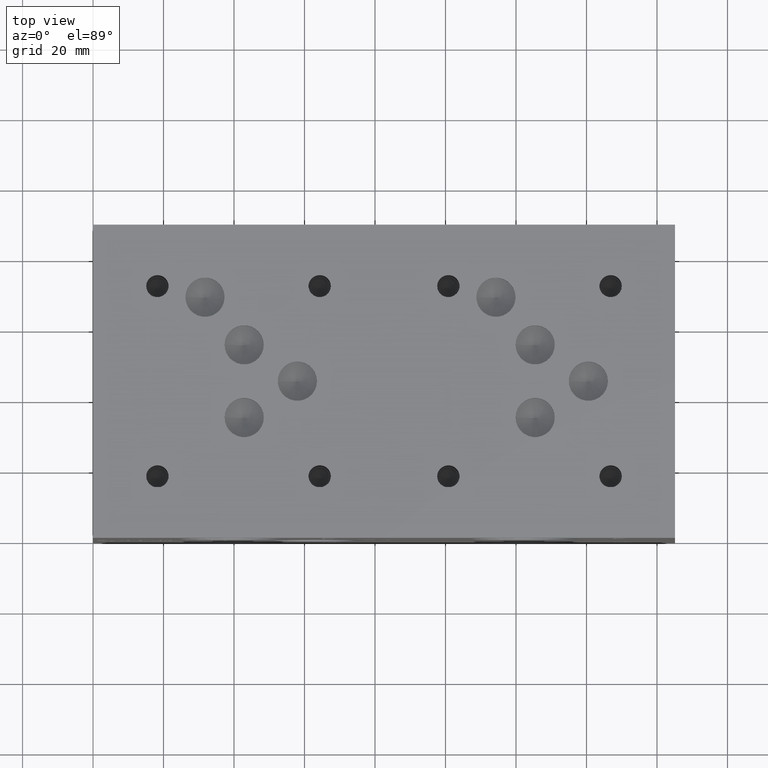
[diagram: clean part render]
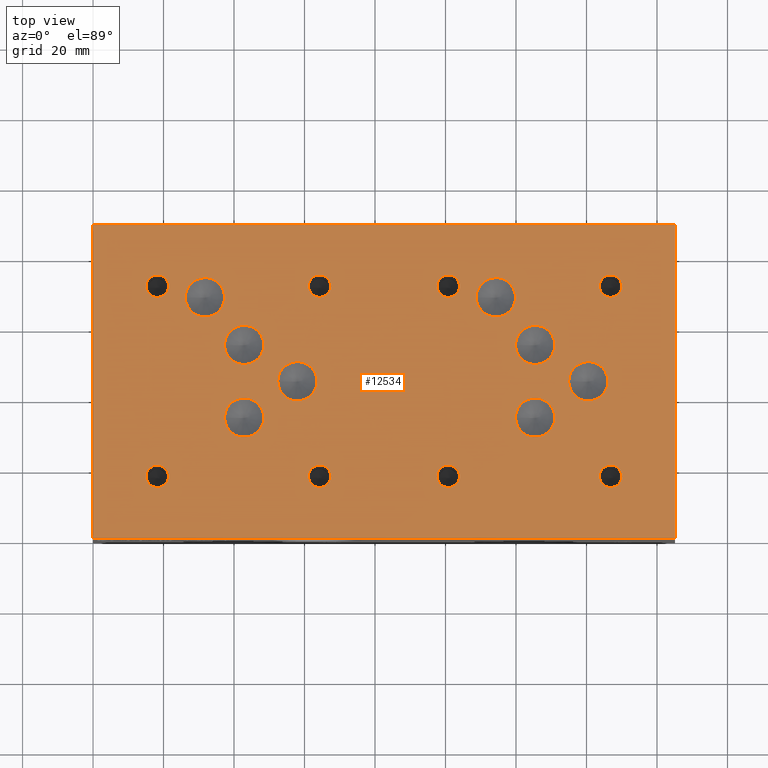
[diagram: same view with one face highlighted and labeled with its STEP entity id]
A machine part, top view. The second image highlights one B-rep face of the part: STEP entity #12534.
In plain terms, the highlighted planar face has unit normal (0, 0, 1).
Its self-contained STEP definition (entity closure, byte-faithful):
#370=CIRCLE('',#12915,3.175);
#371=CIRCLE('',#12916,3.175);
#377=CIRCLE('',#12926,3.175);
#378=CIRCLE('',#12927,3.175);
#384=CIRCLE('',#12937,3.175);
#385=CIRCLE('',#12938,3.175);
#391=CIRCLE('',#12948,3.175);
#392=CIRCLE('',#12949,3.175);
#395=CIRCLE('',#12955,5.5626);
#396=CIRCLE('',#12956,5.5626);
#399=CIRCLE('',#12961,5.5626);
#400=CIRCLE('',#12962,5.5626);
#403=CIRCLE('',#12967,5.5626);
#404=CIRCLE('',#12968,5.5626);
#407=CIRCLE('',#12973,5.5626);
#408=CIRCLE('',#12974,5.5626);
#411=CIRCLE('',#12979,5.5626);
#412=CIRCLE('',#12980,5.5626);
#415=CIRCLE('',#12985,5.5626);
#416=CIRCLE('',#12986,5.5626);
#419=CIRCLE('',#12991,5.5626);
#420=CIRCLE('',#12992,5.5626);
#423=CIRCLE('',#12997,5.5626);
#424=CIRCLE('',#12998,5.5626);
#430=CIRCLE('',#13007,3.175);
#431=CIRCLE('',#13008,3.175);
#437=CIRCLE('',#13018,3.175);
#438=CIRCLE('',#13019,3.175);
#444=CIRCLE('',#13029,3.175);
#445=CIRCLE('',#13030,3.175);
#451=CIRCLE('',#13040,3.175);
#452=CIRCLE('',#13041,3.175);
#1044=FACE_BOUND('',#2430,.T.);
#1045=FACE_BOUND('',#2431,.T.);
#1046=FACE_BOUND('',#2432,.T.);
#1047=FACE_BOUND('',#2433,.T.);
#1048=FACE_BOUND('',#2434,.T.);
#1049=FACE_BOUND('',#2435,.T.);
#1050=FACE_BOUND('',#2436,.T.);
#1051=FACE_BOUND('',#2437,.T.);
#1052=FACE_BOUND('',#2438,.T.);
#1053=FACE_BOUND('',#2439,.T.);
#1054=FACE_BOUND('',#2440,.T.);
#1055=FACE_BOUND('',#2441,.T.);
#1056=FACE_BOUND('',#2442,.T.);
#1057=FACE_BOUND('',#2443,.T.);
#1058=FACE_BOUND('',#2444,.T.);
#1059=FACE_BOUND('',#2445,.T.);
#1703=FACE_OUTER_BOUND('',#2429,.T.);
#2429=EDGE_LOOP('',(#11045,#11046,#11047,#11048));
#2430=EDGE_LOOP('',(#11049,#11050));
#2431=EDGE_LOOP('',(#11051,#11052));
#2432=EDGE_LOOP('',(#11053,#11054));
#2433=EDGE_LOOP('',(#11055,#11056));
#2434=EDGE_LOOP('',(#11057,#11058));
#2435=EDGE_LOOP('',(#11059,#11060));
#2436=EDGE_LOOP('',(#11061,#11062));
#2437=EDGE_LOOP('',(#11063,#11064));
#2438=EDGE_LOOP('',(#11065,#11066));
#2439=EDGE_LOOP('',(#11067,#11068));
#2440=EDGE_LOOP('',(#11069,#11070));
#2441=EDGE_LOOP('',(#11071,#11072));
#2442=EDGE_LOOP('',(#11073,#11074));
#2443=EDGE_LOOP('',(#11075,#11076));
#2444=EDGE_LOOP('',(#11077,#11078));
#2445=EDGE_LOOP('',(#11079,#11080));
#2482=LINE('',#15957,#3586);
#3413=LINE('',#20955,#4517);
#3531=LINE('',#21719,#4635);
#3550=LINE('',#21819,#4654);
#3586=VECTOR('',#13355,10.);
#4517=VECTOR('',#14884,10.);
#4635=VECTOR('',#15758,10.);
#4654=VECTOR('',#15875,10.);
#4679=VERTEX_POINT('',#15954);
#4680=VERTEX_POINT('',#15956);
#5552=VERTEX_POINT('',#20954);
#5592=VERTEX_POINT('',#21061);
#5593=VERTEX_POINT('',#21062);
#5600=VERTEX_POINT('',#21083);
#5601=VERTEX_POINT('',#21084);
#5608=VERTEX_POINT('',#21105);
#5609=VERTEX_POINT('',#21106);
#5616=VERTEX_POINT('',#21127);
#5617=VERTEX_POINT('',#21128);
#5621=VERTEX_POINT('',#21142);
#5622=VERTEX_POINT('',#21143);
#5626=VERTEX_POINT('',#21155);
#5627=VERTEX_POINT('',#21156);
#5631=VERTEX_POINT('',#21168);
#5632=VERTEX_POINT('',#21169);
#5636=VERTEX_POINT('',#21181);
#5637=VERTEX_POINT('',#21182);
#5641=VERTEX_POINT('',#21194);
#5642=VERTEX_POINT('',#21195);
#5646=VERTEX_POINT('',#21207);
#5647=VERTEX_POINT('',#21208);
#5651=VERTEX_POINT('',#21220);
#5652=VERTEX_POINT('',#21221);
#5656=VERTEX_POINT('',#21233);
#5657=VERTEX_POINT('',#21234);
#5664=VERTEX_POINT('',#21253);
#5665=VERTEX_POINT('',#21254);
#5672=VERTEX_POINT('',#21275);
#5673=VERTEX_POINT('',#21276);
#5680=VERTEX_POINT('',#21297);
#5681=VERTEX_POINT('',#21298);
#5688=VERTEX_POINT('',#21319);
#5689=VERTEX_POINT('',#21320);
#5820=VERTEX_POINT('',#21717);
#5888=EDGE_CURVE('',#4680,#4679,#2482,.T.);
#7191=EDGE_CURVE('',#5552,#4680,#3413,.T.);
#7242=EDGE_CURVE('',#5592,#5593,#370,.T.);
#7243=EDGE_CURVE('',#5593,#5592,#371,.T.);
#7252=EDGE_CURVE('',#5600,#5601,#377,.T.);
#7253=EDGE_CURVE('',#5601,#5600,#378,.T.);
#7262=EDGE_CURVE('',#5608,#5609,#384,.T.);
#7263=EDGE_CURVE('',#5609,#5608,#385,.T.);
#7272=EDGE_CURVE('',#5616,#5617,#391,.T.);
#7273=EDGE_CURVE('',#5617,#5616,#392,.T.);
#7279=EDGE_CURVE('',#5621,#5622,#395,.T.);
#7280=EDGE_CURVE('',#5622,#5621,#396,.T.);
#7285=EDGE_CURVE('',#5626,#5627,#399,.T.);
#7286=EDGE_CURVE('',#5627,#5626,#400,.T.);
#7291=EDGE_CURVE('',#5631,#5632,#403,.T.);
#7292=EDGE_CURVE('',#5632,#5631,#404,.T.);
#7297=EDGE_CURVE('',#5636,#5637,#407,.T.);
#7298=EDGE_CURVE('',#5637,#5636,#408,.T.);
#7303=EDGE_CURVE('',#5641,#5642,#411,.T.);
#7304=EDGE_CURVE('',#5642,#5641,#412,.T.);
#7309=EDGE_CURVE('',#5646,#5647,#415,.T.);
#7310=EDGE_CURVE('',#5647,#5646,#416,.T.);
#7315=EDGE_CURVE('',#5651,#5652,#419,.T.);
#7316=EDGE_CURVE('',#5652,#5651,#420,.T.);
#7321=EDGE_CURVE('',#5656,#5657,#423,.T.);
#7322=EDGE_CURVE('',#5657,#5656,#424,.T.);
#7330=EDGE_CURVE('',#5664,#5665,#430,.T.);
#7331=EDGE_CURVE('',#5665,#5664,#431,.T.);
#7340=EDGE_CURVE('',#5672,#5673,#437,.T.);
#7341=EDGE_CURVE('',#5673,#5672,#438,.T.);
#7350=EDGE_CURVE('',#5680,#5681,#444,.T.);
#7351=EDGE_CURVE('',#5681,#5680,#445,.T.);
#7360=EDGE_CURVE('',#5688,#5689,#451,.T.);
#7361=EDGE_CURVE('',#5689,#5688,#452,.T.);
#7549=EDGE_CURVE('',#4679,#5820,#3531,.T.);
#7596=EDGE_CURVE('',#5820,#5552,#3550,.T.);
#11045=ORIENTED_EDGE('',*,*,#5888,.T.);
#11046=ORIENTED_EDGE('',*,*,#7549,.T.);
#11047=ORIENTED_EDGE('',*,*,#7596,.T.);
#11048=ORIENTED_EDGE('',*,*,#7191,.T.);
#11049=ORIENTED_EDGE('',*,*,#7242,.T.);
#11050=ORIENTED_EDGE('',*,*,#7243,.T.);
#11051=ORIENTED_EDGE('',*,*,#7252,.T.);
#11052=ORIENTED_EDGE('',*,*,#7253,.T.);
#11053=ORIENTED_EDGE('',*,*,#7262,.T.);
#11054=ORIENTED_EDGE('',*,*,#7263,.T.);
#11055=ORIENTED_EDGE('',*,*,#7272,.T.);
#11056=ORIENTED_EDGE('',*,*,#7273,.T.);
#11057=ORIENTED_EDGE('',*,*,#7279,.T.);
#11058=ORIENTED_EDGE('',*,*,#7280,.T.);
#11059=ORIENTED_EDGE('',*,*,#7285,.T.);
#11060=ORIENTED_EDGE('',*,*,#7286,.T.);
#11061=ORIENTED_EDGE('',*,*,#7291,.T.);
#11062=ORIENTED_EDGE('',*,*,#7292,.T.);
#11063=ORIENTED_EDGE('',*,*,#7297,.T.);
#11064=ORIENTED_EDGE('',*,*,#7298,.T.);
#11065=ORIENTED_EDGE('',*,*,#7303,.T.);
#11066=ORIENTED_EDGE('',*,*,#7304,.T.);
#11067=ORIENTED_EDGE('',*,*,#7309,.T.);
#11068=ORIENTED_EDGE('',*,*,#7310,.T.);
#11069=ORIENTED_EDGE('',*,*,#7315,.T.);
#11070=ORIENTED_EDGE('',*,*,#7316,.T.);
#11071=ORIENTED_EDGE('',*,*,#7321,.T.);
#11072=ORIENTED_EDGE('',*,*,#7322,.T.);
#11073=ORIENTED_EDGE('',*,*,#7330,.T.);
#11074=ORIENTED_EDGE('',*,*,#7331,.T.);
#11075=ORIENTED_EDGE('',*,*,#7340,.T.);
#11076=ORIENTED_EDGE('',*,*,#7341,.T.);
#11077=ORIENTED_EDGE('',*,*,#7350,.T.);
#11078=ORIENTED_EDGE('',*,*,#7351,.T.);
#11079=ORIENTED_EDGE('',*,*,#7360,.T.);
#11080=ORIENTED_EDGE('',*,*,#7361,.T.);
#11419=PLANE('',#13290);
#12534=ADVANCED_FACE('',(#1703,#1044,#1045,#1046,#1047,#1048,#1049,#1050,
#1051,#1052,#1053,#1054,#1055,#1056,#1057,#1058,#1059),#11419,.T.);
#12915=AXIS2_PLACEMENT_3D('',#21063,#15004,#15005);
#12916=AXIS2_PLACEMENT_3D('',#21064,#15006,#15007);
#12926=AXIS2_PLACEMENT_3D('',#21085,#15029,#15030);
#12927=AXIS2_PLACEMENT_3D('',#21086,#15031,#15032);
#12937=AXIS2_PLACEMENT_3D('',#21107,#15054,#15055);
#12938=AXIS2_PLACEMENT_3D('',#21108,#15056,#15057);
#12948=AXIS2_PLACEMENT_3D('',#21129,#15079,#15080);
#12949=AXIS2_PLACEMENT_3D('',#21130,#15081,#15082);
#12955=AXIS2_PLACEMENT_3D('',#21144,#15096,#15097);
#12956=AXIS2_PLACEMENT_3D('',#21145,#15098,#15099);
#12961=AXIS2_PLACEMENT_3D('',#21157,#15110,#15111);
#12962=AXIS2_PLACEMENT_3D('',#21158,#15112,#15113);
#12967=AXIS2_PLACEMENT_3D('',#21170,#15124,#15125);
#12968=AXIS2_PLACEMENT_3D('',#21171,#15126,#15127);
#12973=AXIS2_PLACEMENT_3D('',#21183,#15138,#15139);
#12974=AXIS2_PLACEMENT_3D('',#21184,#15140,#15141);
#12979=AXIS2_PLACEMENT_3D('',#21196,#15152,#15153);
#12980=AXIS2_PLACEMENT_3D('',#21197,#15154,#15155);
#12985=AXIS2_PLACEMENT_3D('',#21209,#15166,#15167);
#12986=AXIS2_PLACEMENT_3D('',#21210,#15168,#15169);
#12991=AXIS2_PLACEMENT_3D('',#21222,#15180,#15181);
#12992=AXIS2_PLACEMENT_3D('',#21223,#15182,#15183);
#12997=AXIS2_PLACEMENT_3D('',#21235,#15194,#15195);
#12998=AXIS2_PLACEMENT_3D('',#21236,#15196,#15197);
#13007=AXIS2_PLACEMENT_3D('',#21255,#15216,#15217);
#13008=AXIS2_PLACEMENT_3D('',#21256,#15218,#15219);
#13018=AXIS2_PLACEMENT_3D('',#21277,#15241,#15242);
#13019=AXIS2_PLACEMENT_3D('',#21278,#15243,#15244);
#13029=AXIS2_PLACEMENT_3D('',#21299,#15266,#15267);
#13030=AXIS2_PLACEMENT_3D('',#21300,#15268,#15269);
#13040=AXIS2_PLACEMENT_3D('',#21321,#15291,#15292);
#13041=AXIS2_PLACEMENT_3D('',#21322,#15293,#15294);
#13290=AXIS2_PLACEMENT_3D('',#21821,#15878,#15879);
#13355=DIRECTION('',(1.,0.,0.));
#14884=DIRECTION('',(0.,-1.,0.));
#15004=DIRECTION('center_axis',(0.,0.,-1.));
#15005=DIRECTION('ref_axis',(1.,0.,0.));
#15006=DIRECTION('center_axis',(0.,0.,-1.));
#15007=DIRECTION('ref_axis',(1.,0.,0.));
#15029=DIRECTION('center_axis',(0.,0.,-1.));
#15030=DIRECTION('ref_axis',(1.,0.,0.));
#15031=DIRECTION('center_axis',(0.,0.,-1.));
#15032=DIRECTION('ref_axis',(1.,0.,0.));
#15054=DIRECTION('center_axis',(0.,0.,-1.));
#15055=DIRECTION('ref_axis',(1.,0.,0.));
#15056=DIRECTION('center_axis',(0.,0.,-1.));
#15057=DIRECTION('ref_axis',(1.,0.,0.));
#15079=DIRECTION('center_axis',(0.,0.,-1.));
#15080=DIRECTION('ref_axis',(1.,0.,0.));
#15081=DIRECTION('center_axis',(0.,0.,-1.));
#15082=DIRECTION('ref_axis',(1.,0.,0.));
#15096=DIRECTION('center_axis',(0.,0.,-1.));
#15097=DIRECTION('ref_axis',(1.,0.,0.));
#15098=DIRECTION('center_axis',(0.,0.,-1.));
#15099=DIRECTION('ref_axis',(1.,0.,0.));
#15110=DIRECTION('center_axis',(0.,0.,-1.));
#15111=DIRECTION('ref_axis',(1.,0.,0.));
#15112=DIRECTION('center_axis',(0.,0.,-1.));
#15113=DIRECTION('ref_axis',(1.,0.,0.));
#15124=DIRECTION('center_axis',(0.,0.,-1.));
#15125=DIRECTION('ref_axis',(1.,0.,0.));
#15126=DIRECTION('center_axis',(0.,0.,-1.));
#15127=DIRECTION('ref_axis',(1.,0.,0.));
#15138=DIRECTION('center_axis',(0.,0.,-1.));
#15139=DIRECTION('ref_axis',(1.,0.,0.));
#15140=DIRECTION('center_axis',(0.,0.,-1.));
#15141=DIRECTION('ref_axis',(1.,0.,0.));
#15152=DIRECTION('center_axis',(0.,0.,-1.));
#15153=DIRECTION('ref_axis',(1.,0.,0.));
#15154=DIRECTION('center_axis',(0.,0.,-1.));
#15155=DIRECTION('ref_axis',(1.,0.,0.));
#15166=DIRECTION('center_axis',(0.,0.,-1.));
#15167=DIRECTION('ref_axis',(1.,0.,0.));
#15168=DIRECTION('center_axis',(0.,0.,-1.));
#15169=DIRECTION('ref_axis',(1.,0.,0.));
#15180=DIRECTION('center_axis',(0.,0.,-1.));
#15181=DIRECTION('ref_axis',(1.,0.,0.));
#15182=DIRECTION('center_axis',(0.,0.,-1.));
#15183=DIRECTION('ref_axis',(1.,0.,0.));
#15194=DIRECTION('center_axis',(0.,0.,-1.));
#15195=DIRECTION('ref_axis',(1.,0.,0.));
#15196=DIRECTION('center_axis',(0.,0.,-1.));
#15197=DIRECTION('ref_axis',(1.,0.,0.));
#15216=DIRECTION('center_axis',(0.,0.,-1.));
#15217=DIRECTION('ref_axis',(1.,0.,0.));
#15218=DIRECTION('center_axis',(0.,0.,-1.));
#15219=DIRECTION('ref_axis',(1.,0.,0.));
#15241=DIRECTION('center_axis',(0.,0.,-1.));
#15242=DIRECTION('ref_axis',(1.,0.,0.));
#15243=DIRECTION('center_axis',(0.,0.,-1.));
#15244=DIRECTION('ref_axis',(1.,0.,0.));
#15266=DIRECTION('center_axis',(0.,0.,-1.));
#15267=DIRECTION('ref_axis',(1.,0.,0.));
#15268=DIRECTION('center_axis',(0.,0.,-1.));
#15269=DIRECTION('ref_axis',(1.,0.,0.));
#15291=DIRECTION('center_axis',(0.,0.,-1.));
#15292=DIRECTION('ref_axis',(1.,0.,0.));
#15293=DIRECTION('center_axis',(0.,0.,-1.));
#15294=DIRECTION('ref_axis',(1.,0.,0.));
#15758=DIRECTION('',(0.,1.,0.));
#15875=DIRECTION('',(-1.,0.,0.));
#15878=DIRECTION('center_axis',(0.,0.,1.));
#15879=DIRECTION('ref_axis',(1.,0.,0.));
#15954=CARTESIAN_POINT('',(165.1,0.,88.9));
#15956=CARTESIAN_POINT('',(0.,0.,88.9));
#15957=CARTESIAN_POINT('',(0.,0.,88.9));
#20954=CARTESIAN_POINT('',(0.,88.9,88.9));
#20955=CARTESIAN_POINT('',(0.,88.9,88.9));
#21061=CARTESIAN_POINT('',(150.0124,17.4752,88.9));
#21062=CARTESIAN_POINT('',(143.6624,17.4752,88.9));
#21063=CARTESIAN_POINT('Origin',(146.8374,17.4752,88.9));
#21064=CARTESIAN_POINT('Origin',(146.8374,17.4752,88.9));
#21083=CARTESIAN_POINT('',(103.9622,71.4502,88.9));
#21084=CARTESIAN_POINT('',(97.6122,71.4502,88.9));
#21085=CARTESIAN_POINT('Origin',(100.7872,71.4502,88.9));
#21086=CARTESIAN_POINT('Origin',(100.7872,71.4502,88.9));
#21105=CARTESIAN_POINT('',(150.0124,71.4502,88.9));
#21106=CARTESIAN_POINT('',(143.6624,71.4502,88.9));
#21107=CARTESIAN_POINT('Origin',(146.8374,71.4502,88.9));
#21108=CARTESIAN_POINT('Origin',(146.8374,71.4502,88.9));
#21127=CARTESIAN_POINT('',(103.9622,17.4752,88.9));
#21128=CARTESIAN_POINT('',(97.6122,17.4752,88.9));
#21129=CARTESIAN_POINT('Origin',(100.7872,17.4752,88.9));
#21130=CARTESIAN_POINT('Origin',(100.7872,17.4752,88.9));
#21142=CARTESIAN_POINT('',(130.9878,54.7624,88.9));
#21143=CARTESIAN_POINT('',(119.8626,54.7624,88.9));
#21144=CARTESIAN_POINT('Origin',(125.4252,54.7624,88.9));
#21145=CARTESIAN_POINT('Origin',(125.4252,54.7624,88.9));
#21155=CARTESIAN_POINT('',(146.0754,44.45,88.9));
#21156=CARTESIAN_POINT('',(134.9502,44.45,88.9));
#21157=CARTESIAN_POINT('Origin',(140.5128,44.45,88.9));
#21158=CARTESIAN_POINT('Origin',(140.5128,44.45,88.9));
#21168=CARTESIAN_POINT('',(48.4251,54.76748,88.9));
#21169=CARTESIAN_POINT('',(37.2999,54.76748,88.9));
#21170=CARTESIAN_POINT('Origin',(42.8625,54.76748,88.9));
#21171=CARTESIAN_POINT('Origin',(42.8625,54.76748,88.9));
#21181=CARTESIAN_POINT('',(63.5254,44.45,88.9));
#21182=CARTESIAN_POINT('',(52.4002,44.45,88.9));
#21183=CARTESIAN_POINT('Origin',(57.9628,44.45,88.9));
#21184=CARTESIAN_POINT('Origin',(57.9628,44.45,88.9));
#21194=CARTESIAN_POINT('',(37.3126,68.2752,88.9));
#21195=CARTESIAN_POINT('',(26.1874,68.2752,88.9));
#21196=CARTESIAN_POINT('Origin',(31.75,68.2752,88.9));
#21197=CARTESIAN_POINT('Origin',(31.75,68.2752,88.9));
#21207=CARTESIAN_POINT('',(48.43018,34.13252,88.9));
#21208=CARTESIAN_POINT('',(37.30498,34.13252,88.9));
#21209=CARTESIAN_POINT('Origin',(42.86758,34.13252,88.9));
#21210=CARTESIAN_POINT('Origin',(42.86758,34.13252,88.9));
#21220=CARTESIAN_POINT('',(119.8626,68.2752,88.9));
#21221=CARTESIAN_POINT('',(108.7374,68.2752,88.9));
#21222=CARTESIAN_POINT('Origin',(114.3,68.2752,88.9));
#21223=CARTESIAN_POINT('Origin',(114.3,68.2752,88.9));
#21233=CARTESIAN_POINT('',(130.9878,34.1376,88.9));
#21234=CARTESIAN_POINT('',(119.8626,34.1376,88.9));
#21235=CARTESIAN_POINT('Origin',(125.4252,34.1376,88.9));
#21236=CARTESIAN_POINT('Origin',(125.4252,34.1376,88.9));
#21253=CARTESIAN_POINT('',(67.4624,17.4879,88.9));
#21254=CARTESIAN_POINT('',(61.1124,17.4879,88.9));
#21255=CARTESIAN_POINT('Origin',(64.2874,17.4879,88.9));
#21256=CARTESIAN_POINT('Origin',(64.2874,17.4879,88.9));
#21275=CARTESIAN_POINT('',(21.4122,71.4502,88.9));
#21276=CARTESIAN_POINT('',(15.0622,71.4502,88.9));
#21277=CARTESIAN_POINT('Origin',(18.2372,71.4502,88.9));
#21278=CARTESIAN_POINT('Origin',(18.2372,71.4502,88.9));
#21297=CARTESIAN_POINT('',(67.4624,71.4502,88.9));
#21298=CARTESIAN_POINT('',(61.1124,71.4502,88.9));
#21299=CARTESIAN_POINT('Origin',(64.2874,71.4502,88.9));
#21300=CARTESIAN_POINT('Origin',(64.2874,71.4502,88.9));
#21319=CARTESIAN_POINT('',(21.4122,17.4752,88.9));
#21320=CARTESIAN_POINT('',(15.0622,17.4752,88.9));
#21321=CARTESIAN_POINT('Origin',(18.2372,17.4752,88.9));
#21322=CARTESIAN_POINT('Origin',(18.2372,17.4752,88.9));
#21717=CARTESIAN_POINT('',(165.1,88.9,88.9));
#21719=CARTESIAN_POINT('',(165.1,0.,88.9));
#21819=CARTESIAN_POINT('',(165.1,88.9,88.9));
#21821=CARTESIAN_POINT('Origin',(82.55,44.45,88.9));